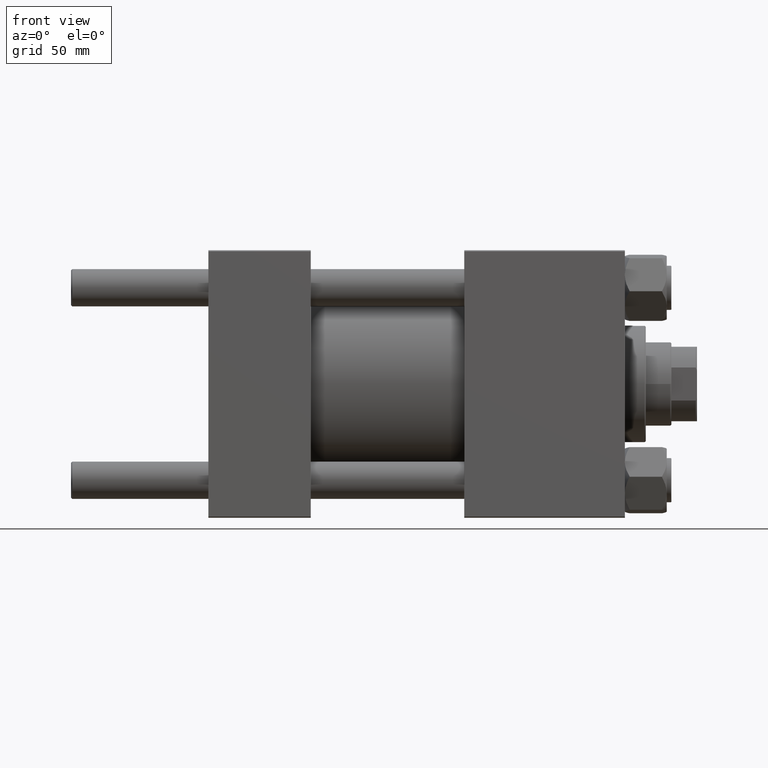
[diagram: clean part render]
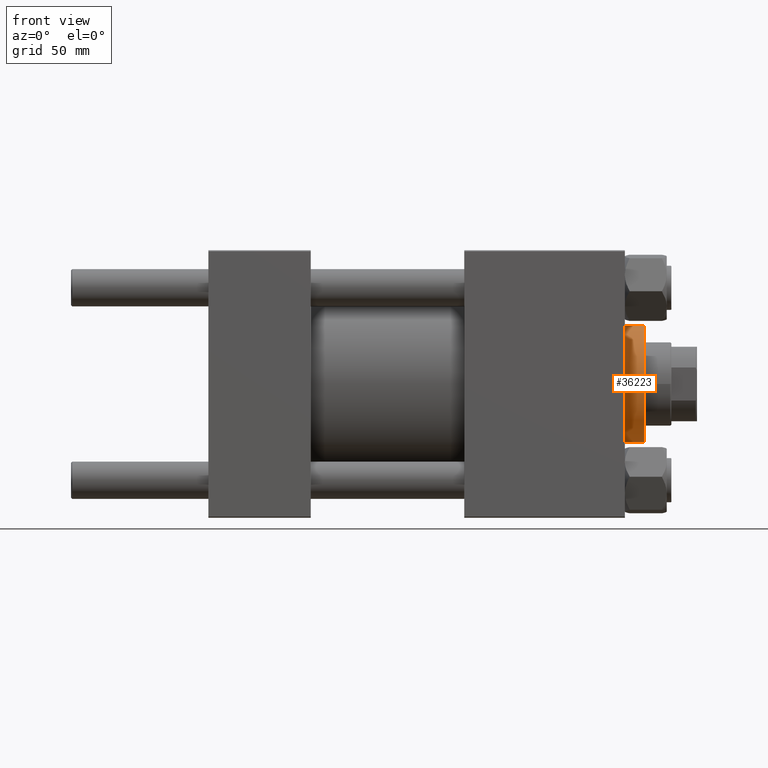
[diagram: same view with one face highlighted and labeled with its STEP entity id]
A machine part, front view. The second image highlights one B-rep face of the part: STEP entity #36223.
In plain terms, the highlighted cylindrical surface (partial cylindrical patch) has radius 25 mm, axis along (-1, -0, 0).
Its self-contained STEP definition (entity closure, byte-faithful):
#321 = CARTESIAN_POINT ( 'NONE',  ( 25.00000000000000000, 3.061616997868383043E-15, 37.19999999999999574 ) ) ;
#466 = DIRECTION ( 'NONE',  ( -1.000000000000000000, 0.000000000000000000, 0.000000000000000000 ) ) ;
#1482 = DIRECTION ( 'NONE',  ( -0.000000000000000000, -0.000000000000000000, -1.000000000000000000 ) ) ;
#1581 = ORIENTED_EDGE ( 'NONE', *, *, #30050, .T. ) ;
#2011 = LINE ( 'NONE', #6553, #29796 ) ;
#3303 = CIRCLE ( 'NONE', #19592, 25.00000000000000000 ) ;
#6553 = CARTESIAN_POINT ( 'NONE',  ( -25.00000000000000000, 0.000000000000000000, 37.69999999999999574 ) ) ;
#7097 = CARTESIAN_POINT ( 'NONE',  ( 0.000000000000000000, 0.000000000000000000, 28.69999999999999929 ) ) ;
#9953 = LINE ( 'NONE', #21927, #21371 ) ;
#10011 = EDGE_CURVE ( 'NONE', #17303, #14699, #9953, .T. ) ;
#12258 = VERTEX_POINT ( 'NONE', #12678 ) ;
#12678 = CARTESIAN_POINT ( 'NONE',  ( -25.00000000000000000, 0.000000000000000000, 37.19999999999999574 ) ) ;
#14699 = VERTEX_POINT ( 'NONE', #26641 ) ;
#14741 = ORIENTED_EDGE ( 'NONE', *, *, #48445, .T. ) ;
#16648 = CIRCLE ( 'NONE', #49193, 25.00000000000000000 ) ;
#17303 = VERTEX_POINT ( 'NONE', #321 ) ;
#19592 = AXIS2_PLACEMENT_3D ( 'NONE', #7097, #46081, #26449 ) ;
#20069 = CYLINDRICAL_SURFACE ( 'NONE', #49886, 25.00000000000000000 ) ;
#21371 = VECTOR ( 'NONE', #36970, 1000.000000000000000 ) ;
#21927 = CARTESIAN_POINT ( 'NONE',  ( 25.00000000000000000, 3.061616997868383043E-15, 37.69999999999999574 ) ) ;
#24958 = ORIENTED_EDGE ( 'NONE', *, *, #10011, .F. ) ;
#25197 = EDGE_LOOP ( 'NONE', ( #24958, #28639, #14741, #1581 ) ) ;
#26449 = DIRECTION ( 'NONE',  ( 1.000000000000000000, 0.000000000000000000, 0.000000000000000000 ) ) ;
#26641 = CARTESIAN_POINT ( 'NONE',  ( 25.00000000000000000, 3.061616997868383043E-15, 28.69999999999999929 ) ) ;
#27958 = DIRECTION ( 'NONE',  ( 0.000000000000000000, 0.000000000000000000, -1.000000000000000000 ) ) ;
#28639 = ORIENTED_EDGE ( 'NONE', *, *, #43487, .T. ) ;
#29796 = VECTOR ( 'NONE', #37150, 1000.000000000000000 ) ;
#30050 = EDGE_CURVE ( 'NONE', #32508, #14699, #3303, .T. ) ;
#32508 = VERTEX_POINT ( 'NONE', #41050 ) ;
#35838 = CARTESIAN_POINT ( 'NONE',  ( 0.000000000000000000, 0.000000000000000000, 37.69999999999999574 ) ) ;
#36223 = ADVANCED_FACE ( 'NONE', ( #39407 ), #20069, .T. ) ;
#36970 = DIRECTION ( 'NONE',  ( -0.000000000000000000, -0.000000000000000000, -1.000000000000000000 ) ) ;
#37150 = DIRECTION ( 'NONE',  ( -0.000000000000000000, -0.000000000000000000, -1.000000000000000000 ) ) ;
#38909 = CARTESIAN_POINT ( 'NONE',  ( 0.000000000000000000, 0.000000000000000000, 37.19999999999999574 ) ) ;
#39407 = FACE_OUTER_BOUND ( 'NONE', #25197, .T. ) ;
#41050 = CARTESIAN_POINT ( 'NONE',  ( -25.00000000000000000, 0.000000000000000000, 28.69999999999999929 ) ) ;
#43487 = EDGE_CURVE ( 'NONE', #17303, #12258, #16648, .T. ) ;
#46081 = DIRECTION ( 'NONE',  ( 0.000000000000000000, 0.000000000000000000, 1.000000000000000000 ) ) ;
#46831 = DIRECTION ( 'NONE',  ( 1.000000000000000000, 0.000000000000000000, 0.000000000000000000 ) ) ;
#48445 = EDGE_CURVE ( 'NONE', #12258, #32508, #2011, .T. ) ;
#49193 = AXIS2_PLACEMENT_3D ( 'NONE', #38909, #27958, #46831 ) ;
#49886 = AXIS2_PLACEMENT_3D ( 'NONE', #35838, #1482, #466 ) ;